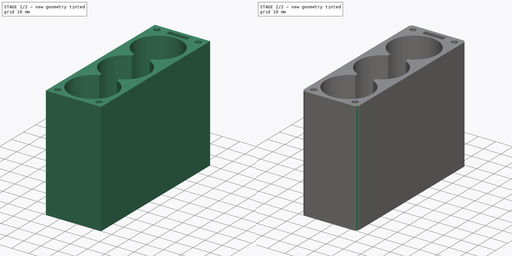
[diagram: build sequence overview — one tinted view per stage of 2, left to right]
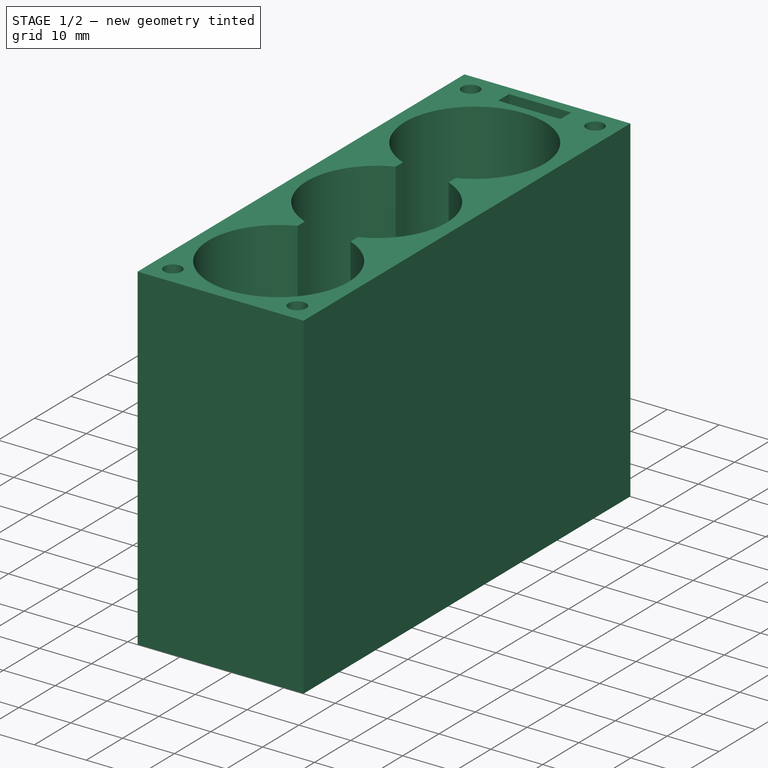
[diagram: stage 1 of 2 — iso view after this stage's code; geometry added in this stage tinted green]
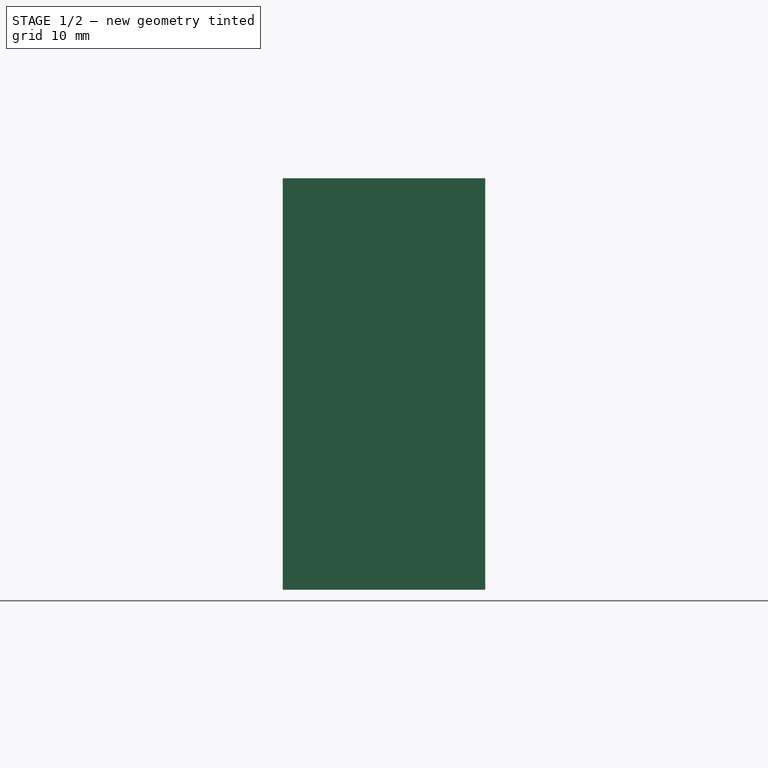
[diagram: stage 1 of 2 — front view after this stage's code; geometry added in this stage tinted green]
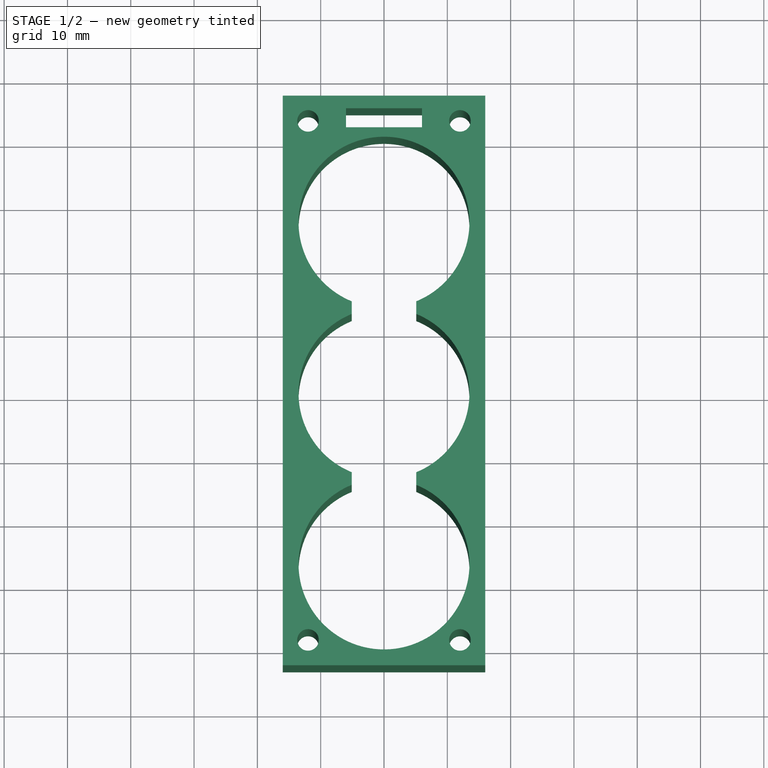
[diagram: stage 1 of 2 — top view after this stage's code; geometry added in this stage tinted green]
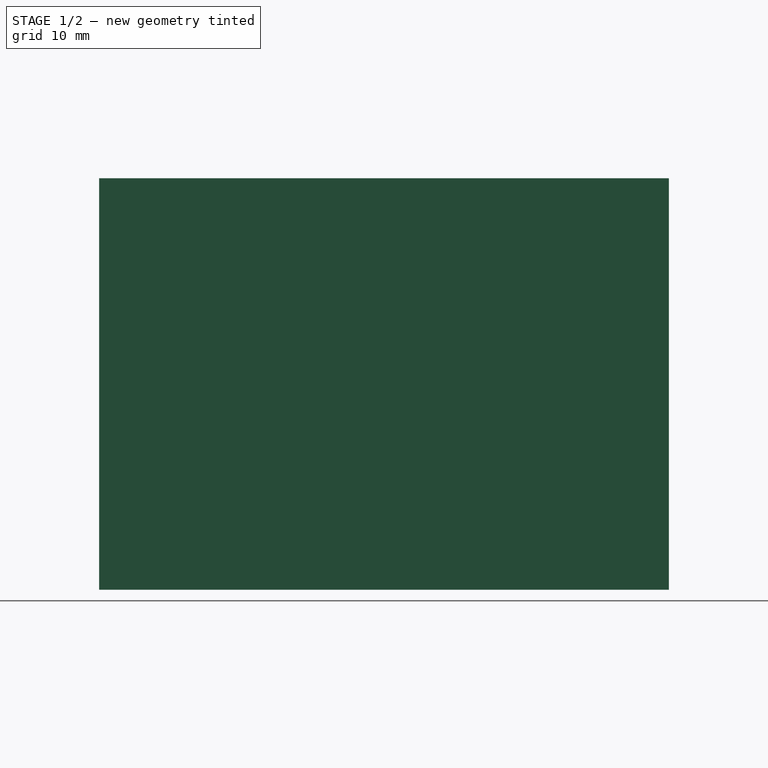
[diagram: stage 1 of 2 — right view after this stage's code; geometry added in this stage tinted green]
FCSTD DOCUMENT  (FreeCAD 0.20R29177 +426 (Git))
Label: 3x_26650_case
License: All rights reserved
LicenseURL: http://en.wikipedia.org/wiki/All_rights_reserved
objects: Sketcher::SketchObject×1, Part::Extrusion×1, Part::Fillet×1
note: 3 computed .brp shape members not serialized (recipe doc carries the construction recipe); baked Part::Feature solids carry a one-line shape summary decoded from their .brp

FEATURE [Sketcher::SketchObject] Sketch
  FullyConstrained = true
  sketch-geometry (20):
    g0: LineSegment StartX=-16 StartY=47 StartZ=0 EndX=16 EndY=47 EndZ=0
    g1: LineSegment StartX=16 StartY=47 StartZ=0 EndX=16 EndY=-43 EndZ=0
    g2: LineSegment StartX=16 StartY=-43 StartZ=0 EndX=-16 EndY=-43 EndZ=0
    g3: LineSegment StartX=-16 StartY=-43 StartZ=0 EndX=-16 EndY=47 EndZ=0
    g4: Circle CenterX=12 CenterY=43 CenterZ=0 NormalX=0 NormalY=0 NormalZ=1 AngleXU=0 Radius=1.7
    g5: Circle CenterX=-12 CenterY=43 CenterZ=0 NormalX=0 NormalY=0 NormalZ=1 AngleXU=0 Radius=1.7
    g6: Circle CenterX=-12 CenterY=-39 CenterZ=0 NormalX=0 NormalY=0 NormalZ=1 AngleXU=0 Radius=1.7
    g7: Circle CenterX=12 CenterY=-39 CenterZ=0 NormalX=0 NormalY=0 NormalZ=1 AngleXU=0 Radius=1.7
    g8: ArcOfCircle CenterX=0 CenterY=27 CenterZ=0 NormalX=0 NormalY=0 NormalZ=1 AngleXU=0 Radius=13.5 StartAngle=5.09971 EndAngle=10.6083
    g9: ArcOfCircle CenterX=0 CenterY=0 CenterZ=0 NormalX=0 NormalY=0 NormalZ=1 AngleXU=0 Radius=13.5 StartAngle=1.95811 EndAngle=4.32507
    g10: ArcOfCircle CenterX=0 CenterY=-27 CenterZ=0 NormalX=0 NormalY=0 NormalZ=1 AngleXU=0 Radius=13.5 StartAngle=1.95811 EndAngle=7.46667
    g11: LineSegment StartX=-5.09902 StartY=14.5 StartZ=0 EndX=-5.09902 EndY=12.5 EndZ=0
    g12: LineSegment StartX=5.09902 StartY=14.5 StartZ=0 EndX=5.09902 EndY=12.5 EndZ=0
    g13: LineSegment StartX=-5.09902 StartY=-12.5 StartZ=0 EndX=-5.09902 EndY=-14.5 EndZ=0
    g14: LineSegment StartX=5.09902 StartY=-12.5 StartZ=0 EndX=5.09902 EndY=-14.5 EndZ=0
    g15: ArcOfCircle CenterX=0 CenterY=0 CenterZ=0 NormalX=0 NormalY=0 NormalZ=1 AngleXU=0 Radius=13.5 StartAngle=5.09971 EndAngle=7.46667
    g16: LineSegment StartX=-6 StartY=45 StartZ=0 EndX=6 EndY=45 EndZ=0
    g17: LineSegment StartX=6 StartY=45 StartZ=0 EndX=6 EndY=42 EndZ=0
    g18: LineSegment StartX=6 StartY=42 StartZ=0 EndX=-6 EndY=42 EndZ=0
    g19: LineSegment StartX=-6 StartY=42 StartZ=0 EndX=-6 EndY=45 EndZ=0
  constraints (63):
    c: Coincident(g0,g1)
    c: Coincident(g1,g2)
    c: Coincident(g2,g3)
    c: Coincident(g3,g0)
    c: Horizontal(g0)
    c: Horizontal(g2)
    c: Vertical(g1)
    c: Vertical(g3)
    c: Diameter(g4) = 3.4
    c: Equal(g4,g5)
    c: Equal(g5,g6)
    c: Equal(g6,g7)
    c: Coincident(g9,g-1)
    c: PointOnObject(g10,g-2)
    c: Diameter(g8) = 27
    c: Equal(g9,g8)
    c: Equal(g10,g9)
    c: PointOnObject(g8,g-2)
    c: Vertical(g11)
    c: Vertical(g12)
    c: Vertical(g13)
    c: PointOnObject(g14,g9)
    c: Vertical(g14)
    c: Coincident(g8,g12)
    c: Coincident(g15,g12)
    c: Coincident(g8,g11)
    c: Coincident(g9,g11)
    c: Equal(g9,g15)
    c: Coincident(g9,g13)
    c: Coincident(g9,g15)
    c: Coincident(g10,g13)
    c: PointOnObject(g15,g14)
    c: DistanceY(g9,g8) = 27
    c: DistanceY(g10,g9) = 27
    c: DistanceY(g12,g12) = 2
    c: DistanceY(g11,g11) = 2
    c: DistanceY(g13,g13) = 2
    c: DistanceY(g14,g14) = 2
    c: Coincident(g10,g14)
    c: DistanceY(g8,g0) = 20
    c: DistanceY(g2,g10) = 16
    c: DistanceX(g2,g10) = 16
    c: DistanceX(g8,g0) = 16
    c: DistanceX(g5,g8) = 12
    c: DistanceY(g8,g5) = 16
    c: DistanceY(g8,g4) = 16
    c: DistanceX(g8,g4) = 12
    c: DistanceX(g6,g10) = 12
    c: DistanceY(g6,g10) = 12
    c: DistanceY(g7,g10) = 12
    c: DistanceX(g10,g7) = 12
    c: Coincident(g16,g17)
    c: Coincident(g17,g18)
    c: Coincident(g18,g19)
    c: Coincident(g19,g16)
    c: Horizontal(g16)
    c: Horizontal(g18)
    c: Vertical(g17)
    c: Vertical(g19)
    c: DistanceX(g16,g16) = 12
    c: DistanceY(g17,g17) = 3
    c: DistanceX(g8,g16) = 6
    c: DistanceY(g8,g17) = 15
FEATURE [Part::Extrusion] Extrude
  Base = -> Sketch
  Dir = (0,0,1)
  DirMode = 2
  FaceMakerClass = Part::FaceMakerBullseye
  LengthFwd = 65
  LengthRev = 0
  Solid = true
  Symmetric = false
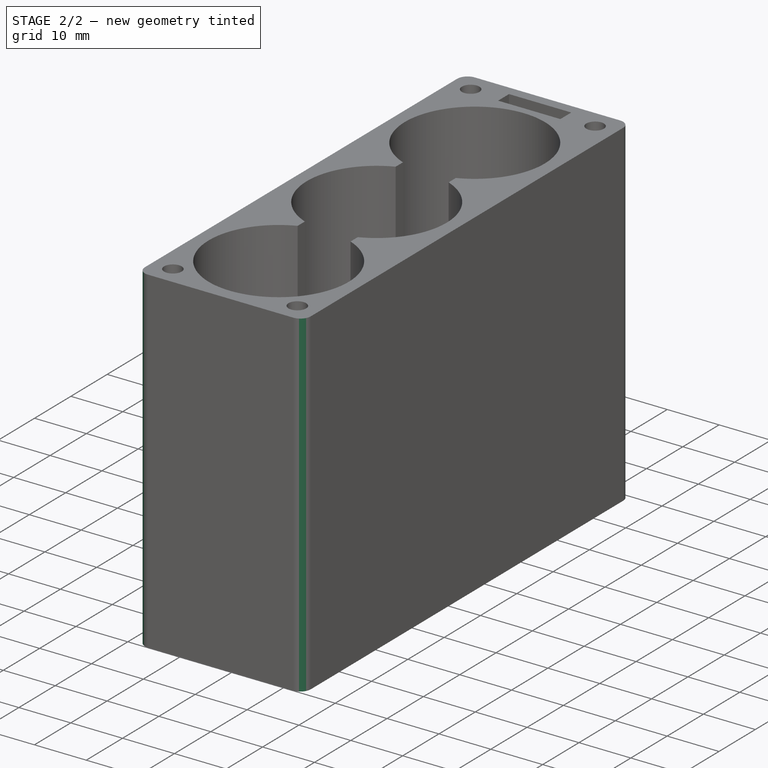
[diagram: stage 2 of 2 — iso view after this stage's code; geometry added in this stage tinted green]
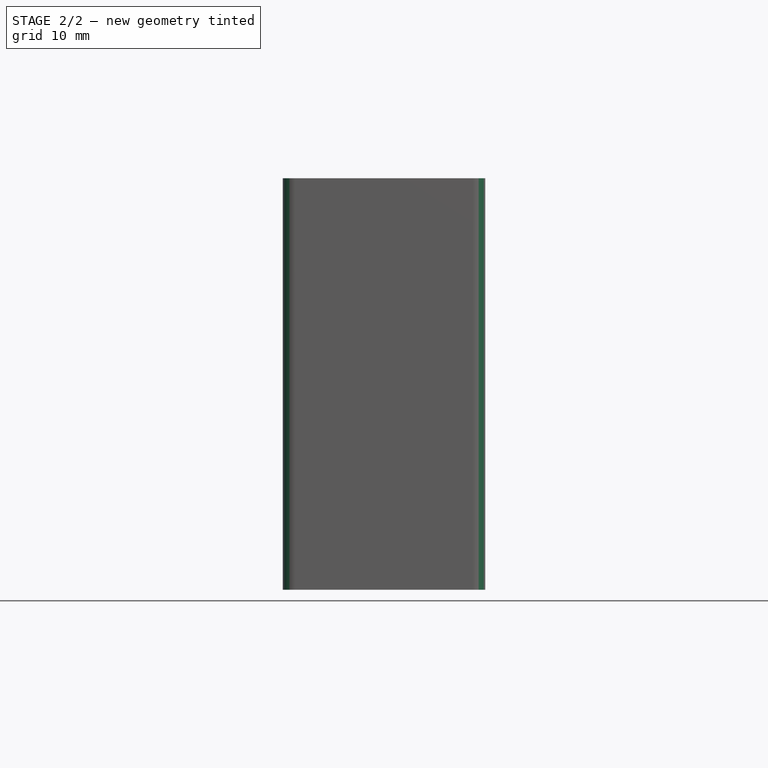
[diagram: stage 2 of 2 — front view after this stage's code; geometry added in this stage tinted green]
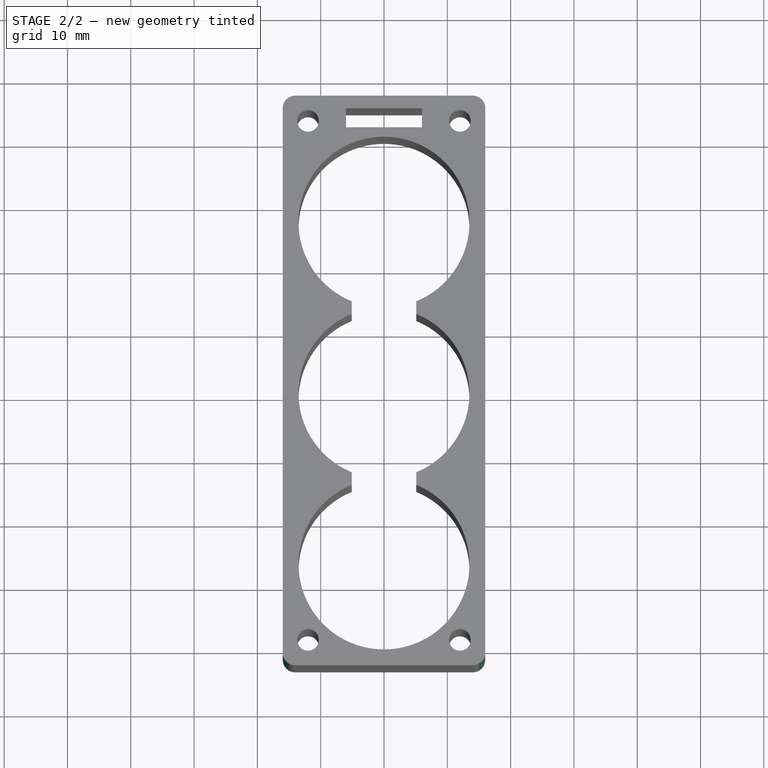
[diagram: stage 2 of 2 — top view after this stage's code; geometry added in this stage tinted green]
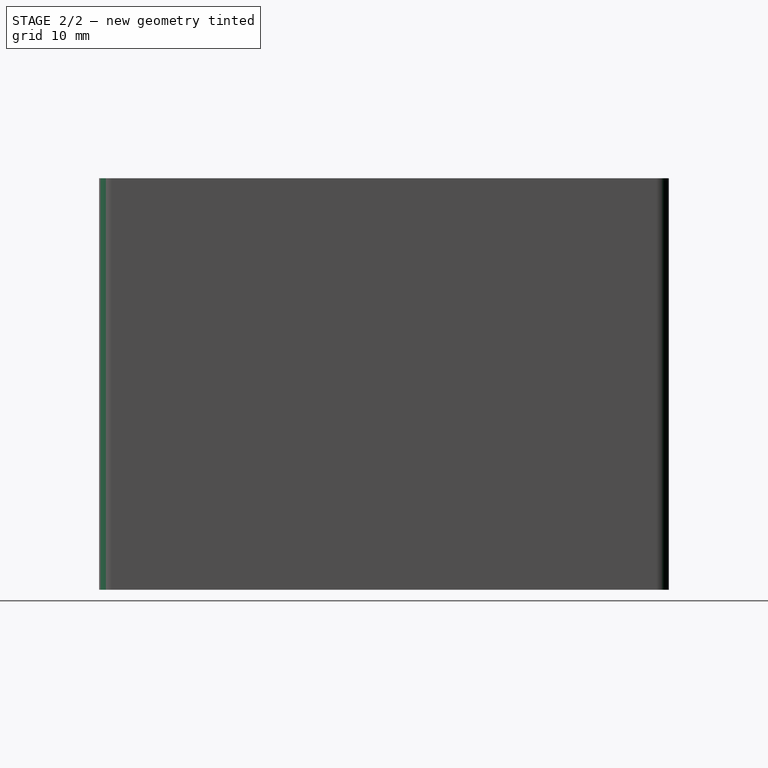
[diagram: stage 2 of 2 — right view after this stage's code; geometry added in this stage tinted green]
FEATURE [Part::Fillet] Fillet
  Base = -> Extrude
  Edges = 4 edges r=2: [Edge1,Edge2,Edge5,Edge8]
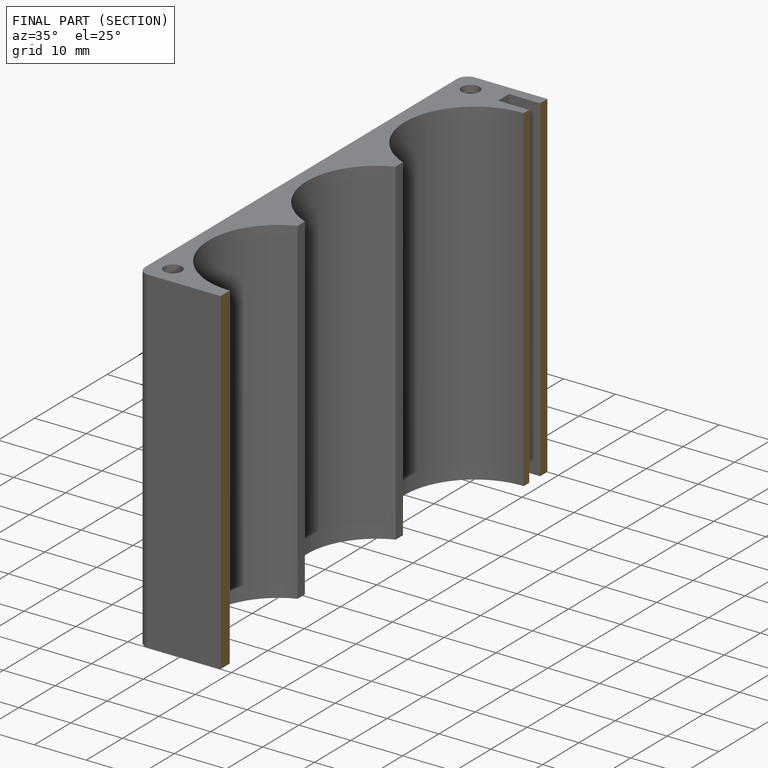
[diagram: finished part — half-section view (interior)]
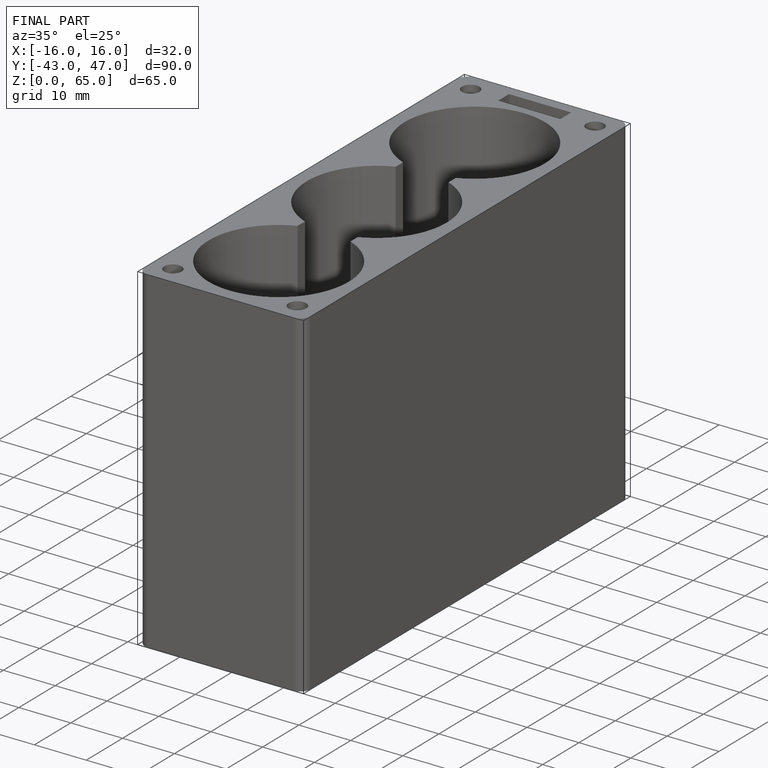
[diagram: finished part — iso view with bounding-box wireframe]
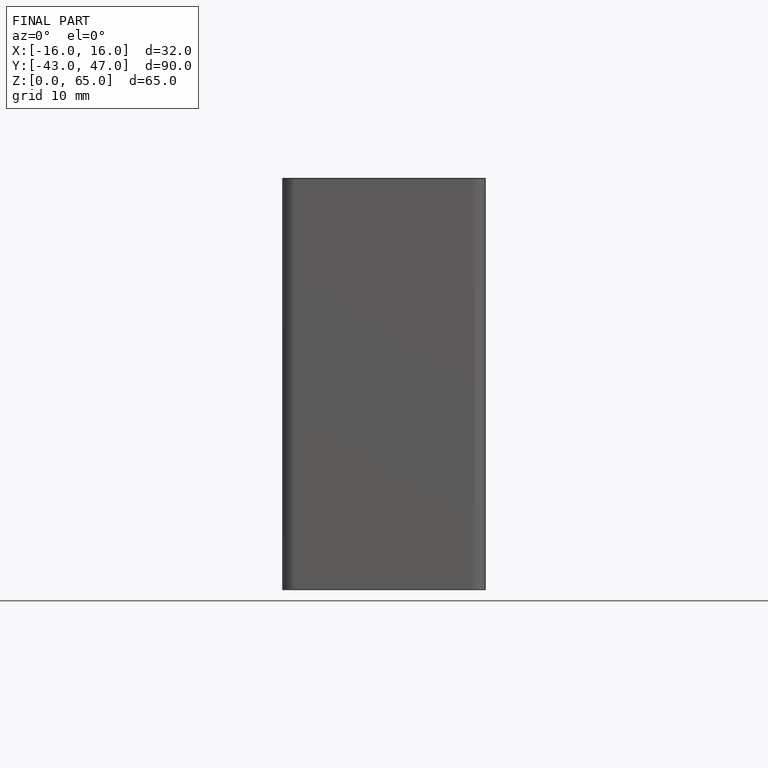
[diagram: finished part — front view with bounding-box wireframe]
